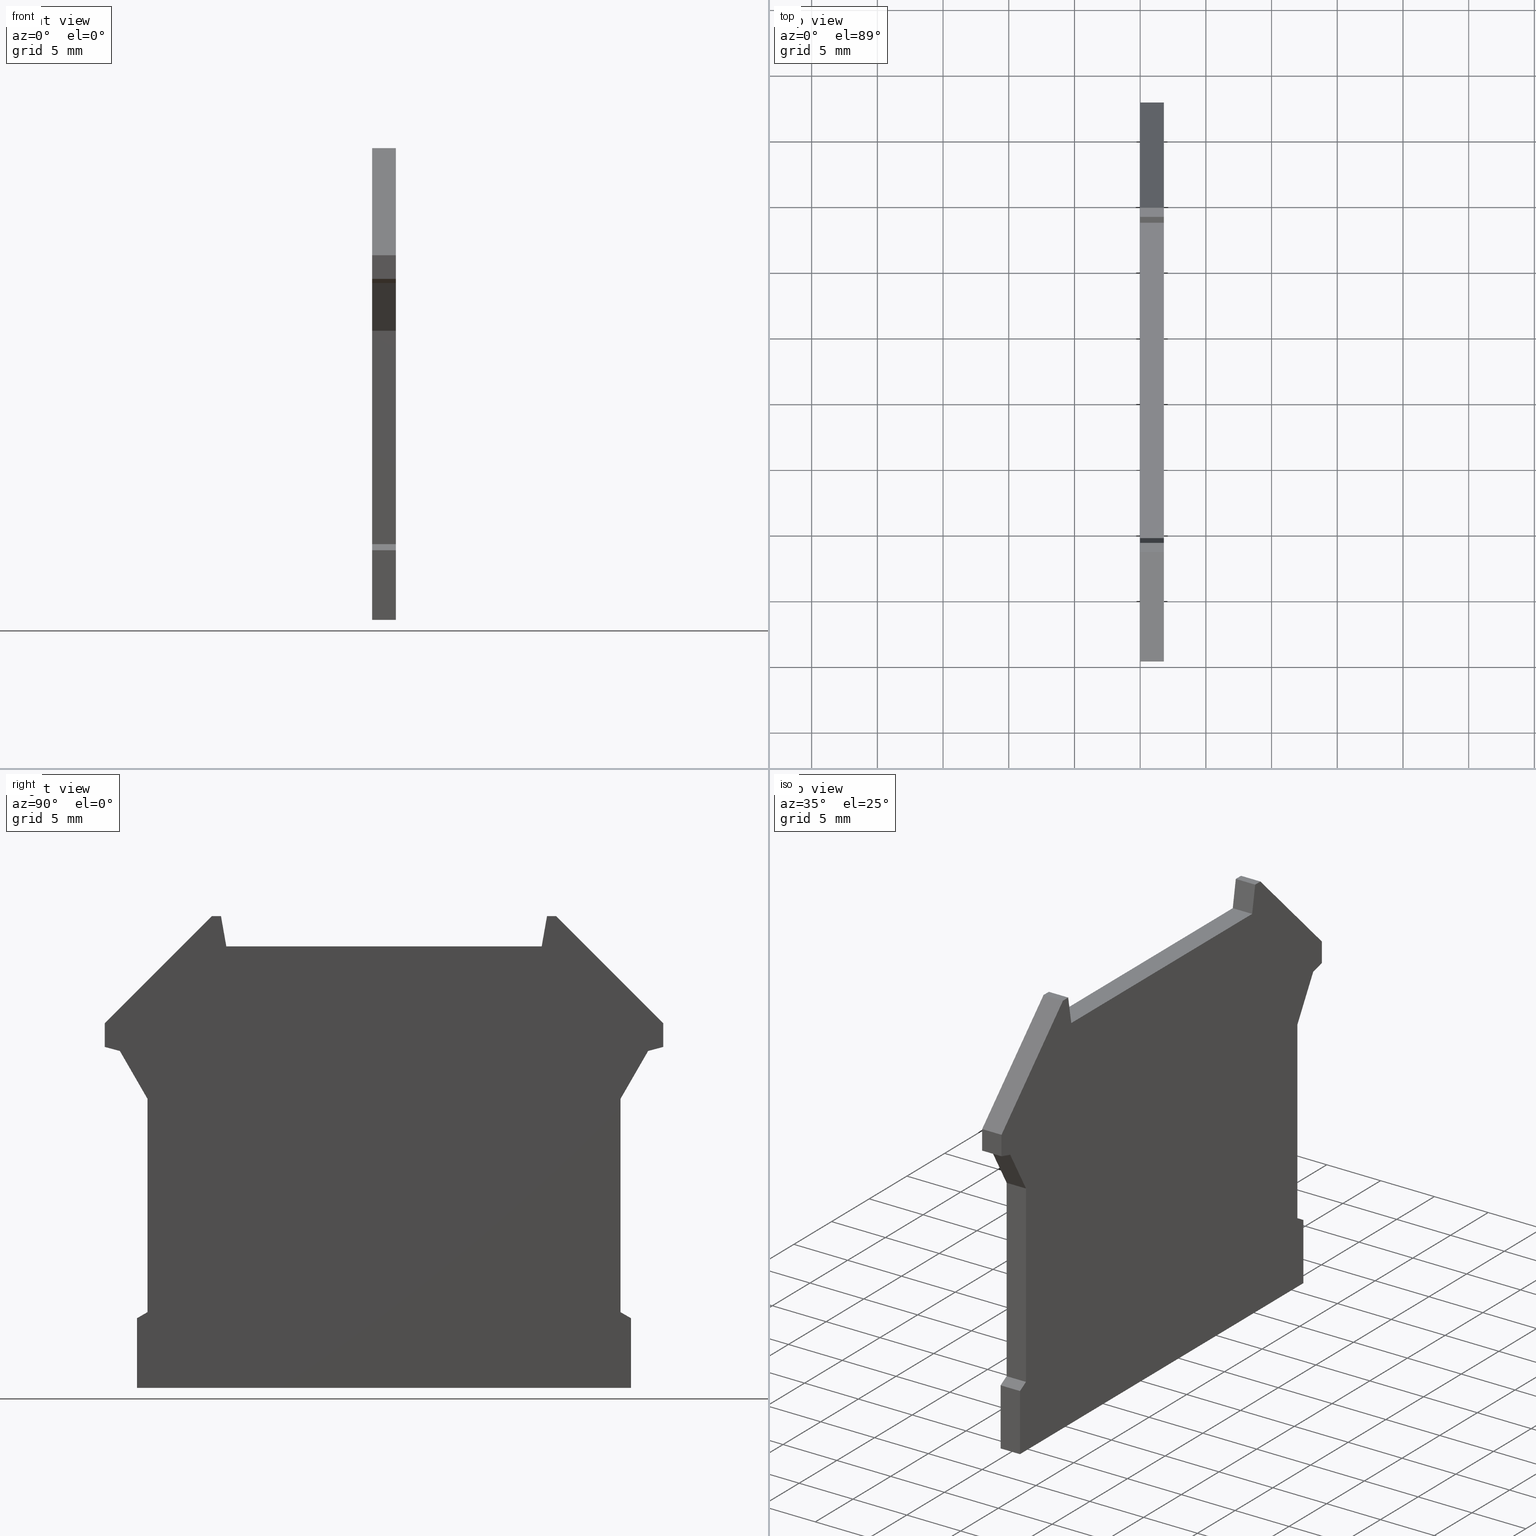
[diagram: canonical four-view strip — front | top / right | iso, engineering-drawing reading convention]
A machine part, canonical four-view strip (front | top / right | iso — engineering-drawing reading convention). The complete STEP part file that produces these views, byte-faithful:
ISO-10303-21;
HEADER;
FILE_DESCRIPTION(('Creo Elements/Direct Modeling STEP Export'),'2;1');
FILE_NAME(
'D:/temp/JobSpoolerServerData/JobServer Files/74b70a27-d33e-4ade-8ea8-19
5511be864b/work/output/model.stp','2018-02-09T13:28:40',(''),(''),
'Creo Elements/Direct Modeling STEP processor for AP214 (Solid Model)',
'Creo Elements/Direct Modeling 18.1I  14-Aug-2016 (C) Parametric Technol
ogy GmbH','');
FILE_SCHEMA(('AUTOMOTIVE_DESIGN { 1 0 10303 214 1 1 1 1 }'));
ENDSEC;
DATA;
#10=CARTESIAN_POINT('',(24.7387149722693,241.342009147616,-3.3));
#20=DIRECTION('',(0.,0.,-1.));
#30=DIRECTION('',(-1.,0.,0.));
#40=AXIS2_PLACEMENT_3D('',#10,#20,#30);
#50=PLANE('',#40);
#60=CARTESIAN_POINT('',(11.5443975377984,0.,-3.3));
#70=DIRECTION('',(0.,-1.,0.));
#80=VECTOR('',#70,1.);
#90=LINE('',#60,#80);
#100=CARTESIAN_POINT('',(11.5443975377984,250.608100844792,-3.3));
#110=VERTEX_POINT('',#100);
#120=CARTESIAN_POINT('',(11.5443975377984,234.369981060144,-3.3));
#130=VERTEX_POINT('',#120);
#140=EDGE_CURVE('',#110,#130,#90,.T.);
#150=ORIENTED_EDGE('',*,*,#140,.F.);
#160=CARTESIAN_POINT('',(0.,227.704820034065,-3.3));
#170=DIRECTION('',(0.866025403784465,0.499999999999955,0.));
#180=VECTOR('',#170,1.);
#190=LINE('',#160,#180);
#200=CARTESIAN_POINT('',(10.7443975377984,233.908100844792,-3.3));
#210=VERTEX_POINT('',#200);
#220=EDGE_CURVE('',#210,#130,#190,.T.);
#230=ORIENTED_EDGE('',*,*,#220,.T.);
#240=CARTESIAN_POINT('',(10.7443975377984,0.,-3.3));
#250=DIRECTION('',(0.,1.,0.));
#260=VECTOR('',#250,1.);
#270=LINE('',#240,#260);
#280=CARTESIAN_POINT('',(10.7443975377984,228.608100844792,-3.3));
#290=VERTEX_POINT('',#280);
#300=EDGE_CURVE('',#290,#210,#270,.T.);
#310=ORIENTED_EDGE('',*,*,#300,.T.);
#320=CARTESIAN_POINT('',(0.,228.608100844792,-3.3));
#330=DIRECTION('',(-1.,0.,0.));
#340=VECTOR('',#330,1.);
#350=LINE('',#320,#340);
#360=CARTESIAN_POINT('',(48.3443975377984,228.608100844792,-3.3));
#370=VERTEX_POINT('',#360);
#380=EDGE_CURVE('',#370,#290,#350,.T.);
#390=ORIENTED_EDGE('',*,*,#380,.T.);
#400=CARTESIAN_POINT('',(48.3443975377984,0.,-3.3));
#410=DIRECTION('',(0.,1.,0.));
#420=VECTOR('',#410,1.);
#430=LINE('',#400,#420);
#440=CARTESIAN_POINT('',(48.3443975377984,233.908100844792,-3.3));
#450=VERTEX_POINT('',#440);
#460=EDGE_CURVE('',#370,#450,#430,.T.);
#470=ORIENTED_EDGE('',*,*,#460,.F.);
#480=CARTESIAN_POINT('',(0.,261.819751777048,-3.3));
#490=DIRECTION('',(0.866025403784456,-0.499999999999971,0.));
#500=VECTOR('',#490,1.);
#510=LINE('',#480,#500);
#520=CARTESIAN_POINT('',(47.5443975377984,234.369981060144,-3.3));
#530=VERTEX_POINT('',#520);
#540=EDGE_CURVE('',#530,#450,#510,.T.);
#550=ORIENTED_EDGE('',*,*,#540,.T.);
#560=CARTESIAN_POINT('',(47.5443975377984,0.,-3.3));
#570=DIRECTION('',(0.,1.,0.));
#580=VECTOR('',#570,1.);
#590=LINE('',#560,#580);
#600=CARTESIAN_POINT('',(47.5443975377984,250.608100844792,-3.3));
#610=VERTEX_POINT('',#600);
#620=EDGE_CURVE('',#530,#610,#590,.T.);
#630=ORIENTED_EDGE('',*,*,#620,.F.);
#640=CARTESIAN_POINT('',(-97.1442569460446,0.,-3.3));
#650=DIRECTION('',(0.500000000000004,0.866025403784437,0.));
#660=VECTOR('',#650,1.);
#670=LINE('',#640,#660);
#680=CARTESIAN_POINT('',(49.6443975377984,254.245407540687,-3.3));
#690=VERTEX_POINT('',#680);
#700=EDGE_CURVE('',#610,#690,#670,.T.);
#710=ORIENTED_EDGE('',*,*,#700,.F.);
#720=CARTESIAN_POINT('',(0.,240.943231311703,-3.3));
#730=DIRECTION('',(-0.965925826289065,-0.258819045102532,0.));
#740=VECTOR('',#730,1.);
#750=LINE('',#720,#740);
#760=CARTESIAN_POINT('',(50.7943975377984,254.553549111982,-3.3));
#770=VERTEX_POINT('',#760);
#780=EDGE_CURVE('',#770,#690,#750,.T.);
#790=ORIENTED_EDGE('',*,*,#780,.T.);
#800=CARTESIAN_POINT('',(50.7943975377984,0.,-3.3));
#810=DIRECTION('',(0.,1.,0.));
#820=VECTOR('',#810,1.);
#830=LINE('',#800,#820);
#840=CARTESIAN_POINT('',(50.7943975377984,256.358100844792,-3.3));
#850=VERTEX_POINT('',#840);
#860=EDGE_CURVE('',#770,#850,#830,.T.);
#870=ORIENTED_EDGE('',*,*,#860,.F.);
#880=CARTESIAN_POINT('',(307.152498382589,0.,-3.3));
#890=DIRECTION('',(0.707106781186546,-0.707106781186549,0.));
#900=VECTOR('',#890,1.);
#910=LINE('',#880,#900);
#920=CARTESIAN_POINT('',(42.6443975377983,264.508100844792,-3.3));
#930=VERTEX_POINT('',#920);
#940=EDGE_CURVE('',#930,#850,#910,.T.);
#950=ORIENTED_EDGE('',*,*,#940,.T.);
#960=CARTESIAN_POINT('',(0.,264.508100844792,-3.3));
#970=DIRECTION('',(-1.,0.,0.));
#980=VECTOR('',#970,1.);
#990=LINE('',#960,#980);
#1000=CARTESIAN_POINT('',(41.9499495934279,264.508100844792,-3.3));
#1010=VERTEX_POINT('',#1000);
#1020=EDGE_CURVE('',#930,#1010,#990,.T.);
#1030=ORIENTED_EDGE('',*,*,#1020,.F.);
#1040=CARTESIAN_POINT('',(-4.68996520146441,0.,-3.3));
#1050=DIRECTION('',(-0.17364817766693,-0.984807753012208,0.));
#1060=VECTOR('',#1050,1.);
#1070=LINE('',#1040,#1060);
#1080=CARTESIAN_POINT('',(41.5443975377984,262.208100844792,-3.3));
#1090=VERTEX_POINT('',#1080);
#1100=EDGE_CURVE('',#1010,#1090,#1070,.T.);
#1110=ORIENTED_EDGE('',*,*,#1100,.F.);
#1120=CARTESIAN_POINT('',(0.,262.208100844792,-3.3));
#1130=DIRECTION('',(-1.,0.,0.));
#1140=VECTOR('',#1130,1.);
#1150=LINE('',#1120,#1140);
#1160=CARTESIAN_POINT('',(17.5443975377984,262.208100844792,-3.3));
#1170=VERTEX_POINT('',#1160);
#1180=EDGE_CURVE('',#1090,#1170,#1150,.T.);
#1190=ORIENTED_EDGE('',*,*,#1180,.F.);
#1200=CARTESIAN_POINT('',(63.7787602770612,0.,-3.3));
#1210=DIRECTION('',(-0.17364817766693,0.984807753012208,0.));
#1220=VECTOR('',#1210,1.);
#1230=LINE('',#1200,#1220);
#1240=CARTESIAN_POINT('',(17.1388454821689,264.508100844792,-3.3));
#1250=VERTEX_POINT('',#1240);
#1260=EDGE_CURVE('',#1170,#1250,#1230,.T.);
#1270=ORIENTED_EDGE('',*,*,#1260,.F.);
#1280=CARTESIAN_POINT('',(0.,264.508100844792,-3.3));
#1290=DIRECTION('',(-1.,0.,0.));
#1300=VECTOR('',#1290,1.);
#1310=LINE('',#1280,#1300);
#1320=CARTESIAN_POINT('',(16.4443975377984,264.508100844792,-3.3));
#1330=VERTEX_POINT('',#1320);
#1340=EDGE_CURVE('',#1250,#1330,#1310,.T.);
#1350=ORIENTED_EDGE('',*,*,#1340,.F.);
#1360=CARTESIAN_POINT('',(-248.063703306992,0.,-3.3));
#1370=DIRECTION('',(0.707106781186546,0.707106781186549,0.));
#1380=VECTOR('',#1370,1.);
#1390=LINE('',#1360,#1380);
#1400=CARTESIAN_POINT('',(8.2943975377984,256.358100844792,-3.3));
#1410=VERTEX_POINT('',#1400);
#1420=EDGE_CURVE('',#1410,#1330,#1390,.T.);
#1430=ORIENTED_EDGE('',*,*,#1420,.T.);
#1440=CARTESIAN_POINT('',(8.2943975377984,0.,-3.3));
#1450=DIRECTION('',(0.,-1.,0.));
#1460=VECTOR('',#1450,1.);
#1470=LINE('',#1440,#1460);
#1480=CARTESIAN_POINT('',(8.29439753779841,254.553549111982,-3.3));
#1490=VERTEX_POINT('',#1480);
#1500=EDGE_CURVE('',#1410,#1490,#1470,.T.);
#1510=ORIENTED_EDGE('',*,*,#1500,.F.);
#1520=CARTESIAN_POINT('',(0.,256.776026233938,-3.3));
#1530=DIRECTION('',(-0.965925826289065,0.258819045102532,0.));
#1540=VECTOR('',#1530,1.);
#1550=LINE('',#1520,#1540);
#1560=CARTESIAN_POINT('',(9.44439753779835,254.245407540687,-3.3));
#1570=VERTEX_POINT('',#1560);
#1580=EDGE_CURVE('',#1570,#1490,#1550,.T.);
#1590=ORIENTED_EDGE('',*,*,#1580,.T.);
#1600=CARTESIAN_POINT('',(156.233052021642,0.,-3.3));
#1610=DIRECTION('',(0.500000000000005,-0.866025403784436,0.));
#1620=VECTOR('',#1610,1.);
#1630=LINE('',#1600,#1620);
#1640=EDGE_CURVE('',#1570,#110,#1630,.T.);
#1650=ORIENTED_EDGE('',*,*,#1640,.F.);
#1660=EDGE_LOOP('',(#1650,#1590,#1510,#1430,#1350,#1270,#1190,#1110,
#1030,#950,#870,#790,#710,#630,#550,#470,#390,#310,#230,#150));
#1670=FACE_OUTER_BOUND('',#1660,.T.);
#1680=ADVANCED_FACE('',(#1670),#50,.T.);
#1690=COLOUR_RGB('',0.,0.443137288093567,0.709803938865662);
#1700=FILL_AREA_STYLE_COLOUR('',#1690);
#1710=FILL_AREA_STYLE('',(#1700));
#1720=SURFACE_STYLE_FILL_AREA(#1710);
#1730=SURFACE_SIDE_STYLE('',(#1720));
#1740=SURFACE_STYLE_USAGE(.BOTH.,#1730);
#1750=PRESENTATION_STYLE_ASSIGNMENT((#1740));
#1760=CARTESIAN_POINT('',(0.,0.,-1.5));
#1770=DIRECTION('',(0.,0.,1.));
#1780=DIRECTION('',(1.,0.,0.));
#1790=AXIS2_PLACEMENT_3D('',#1760,#1770,#1780);
#1800=PLANE('',#1790);
#1810=CARTESIAN_POINT('',(0.,264.508100844792,-1.5));
#1820=DIRECTION('',(-1.,0.,0.));
#1830=VECTOR('',#1820,1.);
#1840=LINE('',#1810,#1830);
#1850=CARTESIAN_POINT('',(17.1388454821689,264.508100844792,-1.5));
#1860=VERTEX_POINT('',#1850);
#1870=CARTESIAN_POINT('',(16.4443975377986,264.508100844792,-1.5));
#1880=VERTEX_POINT('',#1870);
#1890=EDGE_CURVE('',#1860,#1880,#1840,.T.);
#1900=ORIENTED_EDGE('',*,*,#1890,.T.);
#1910=CARTESIAN_POINT('',(63.7787602770612,0.,-1.5));
#1920=DIRECTION('',(-0.17364817766693,0.984807753012208,0.));
#1930=VECTOR('',#1920,1.);
#1940=LINE('',#1910,#1930);
#1950=CARTESIAN_POINT('',(17.5443975377984,262.208100844792,-1.5));
#1960=VERTEX_POINT('',#1950);
#1970=EDGE_CURVE('',#1960,#1860,#1940,.T.);
#1980=ORIENTED_EDGE('',*,*,#1970,.T.);
#1990=CARTESIAN_POINT('',(0.,262.208100844792,-1.5));
#2000=DIRECTION('',(-1.,0.,0.));
#2010=VECTOR('',#2000,1.);
#2020=LINE('',#1990,#2010);
#2030=CARTESIAN_POINT('',(41.5443975377984,262.208100844792,-1.5));
#2040=VERTEX_POINT('',#2030);
#2050=EDGE_CURVE('',#2040,#1960,#2020,.T.);
#2060=ORIENTED_EDGE('',*,*,#2050,.T.);
#2070=CARTESIAN_POINT('',(-4.68996520146441,0.,-1.5));
#2080=DIRECTION('',(-0.17364817766693,-0.984807753012208,0.));
#2090=VECTOR('',#2080,1.);
#2100=LINE('',#2070,#2090);
#2110=CARTESIAN_POINT('',(41.9499495934279,264.508100844792,-1.5));
#2120=VERTEX_POINT('',#2110);
#2130=EDGE_CURVE('',#2120,#2040,#2100,.T.);
#2140=ORIENTED_EDGE('',*,*,#2130,.T.);
#2150=CARTESIAN_POINT('',(0.,264.508100844792,-1.5));
#2160=DIRECTION('',(-1.,0.,0.));
#2170=VECTOR('',#2160,1.);
#2180=LINE('',#2150,#2170);
#2190=CARTESIAN_POINT('',(42.6443975377982,264.508100844792,-1.5));
#2200=VERTEX_POINT('',#2190);
#2210=EDGE_CURVE('',#2200,#2120,#2180,.T.);
#2220=ORIENTED_EDGE('',*,*,#2210,.T.);
#2230=CARTESIAN_POINT('',(307.152498382589,0.,-1.5));
#2240=DIRECTION('',(-0.707106781186546,0.707106781186549,0.));
#2250=VECTOR('',#2240,1.);
#2260=LINE('',#2230,#2250);
#2270=CARTESIAN_POINT('',(50.7943975377984,256.358100844792,-1.5));
#2280=VERTEX_POINT('',#2270);
#2290=EDGE_CURVE('',#2280,#2200,#2260,.T.);
#2300=ORIENTED_EDGE('',*,*,#2290,.T.);
#2310=CARTESIAN_POINT('',(50.7943975377984,0.,-1.5));
#2320=DIRECTION('',(0.,1.,0.));
#2330=VECTOR('',#2320,1.);
#2340=LINE('',#2310,#2330);
#2350=CARTESIAN_POINT('',(50.7943975377984,254.553549111982,-1.5));
#2360=VERTEX_POINT('',#2350);
#2370=EDGE_CURVE('',#2360,#2280,#2340,.T.);
#2380=ORIENTED_EDGE('',*,*,#2370,.T.);
#2390=CARTESIAN_POINT('',(0.,240.943231311703,-1.5));
#2400=DIRECTION('',(0.965925826289065,0.258819045102532,0.));
#2410=VECTOR('',#2400,1.);
#2420=LINE('',#2390,#2410);
#2430=CARTESIAN_POINT('',(49.6443975377986,254.245407540687,-1.5));
#2440=VERTEX_POINT('',#2430);
#2450=EDGE_CURVE('',#2440,#2360,#2420,.T.);
#2460=ORIENTED_EDGE('',*,*,#2450,.T.);
#2470=CARTESIAN_POINT('',(-97.1442569460446,0.,-1.5));
#2480=DIRECTION('',(0.500000000000004,0.866025403784437,0.));
#2490=VECTOR('',#2480,1.);
#2500=LINE('',#2470,#2490);
#2510=CARTESIAN_POINT('',(47.5443975377984,250.608100844792,-1.5));
#2520=VERTEX_POINT('',#2510);
#2530=EDGE_CURVE('',#2520,#2440,#2500,.T.);
#2540=ORIENTED_EDGE('',*,*,#2530,.T.);
#2550=CARTESIAN_POINT('',(47.5443975377984,0.,-1.5));
#2560=DIRECTION('',(0.,1.,0.));
#2570=VECTOR('',#2560,1.);
#2580=LINE('',#2550,#2570);
#2590=CARTESIAN_POINT('',(47.5443975377984,234.369981060144,-1.5));
#2600=VERTEX_POINT('',#2590);
#2610=EDGE_CURVE('',#2600,#2520,#2580,.T.);
#2620=ORIENTED_EDGE('',*,*,#2610,.T.);
#2630=CARTESIAN_POINT('',(0.,261.819751777048,-1.5));
#2640=DIRECTION('',(-0.866025403784456,0.499999999999971,0.));
#2650=VECTOR('',#2640,1.);
#2660=LINE('',#2630,#2650);
#2670=CARTESIAN_POINT('',(48.3443975377984,233.908100844792,-1.5));
#2680=VERTEX_POINT('',#2670);
#2690=EDGE_CURVE('',#2680,#2600,#2660,.T.);
#2700=ORIENTED_EDGE('',*,*,#2690,.T.);
#2710=CARTESIAN_POINT('',(48.3443975377984,0.,-1.5));
#2720=DIRECTION('',(0.,1.,0.));
#2730=VECTOR('',#2720,1.);
#2740=LINE('',#2710,#2730);
#2750=CARTESIAN_POINT('',(48.3443975377984,228.608100844792,-1.5));
#2760=VERTEX_POINT('',#2750);
#2770=EDGE_CURVE('',#2760,#2680,#2740,.T.);
#2780=ORIENTED_EDGE('',*,*,#2770,.T.);
#2790=CARTESIAN_POINT('',(0.,228.608100844792,-1.5));
#2800=DIRECTION('',(1.,0.,0.));
#2810=VECTOR('',#2800,1.);
#2820=LINE('',#2790,#2810);
#2830=CARTESIAN_POINT('',(10.7443975377984,228.608100844792,-1.5));
#2840=VERTEX_POINT('',#2830);
#2850=EDGE_CURVE('',#2840,#2760,#2820,.T.);
#2860=ORIENTED_EDGE('',*,*,#2850,.T.);
#2870=CARTESIAN_POINT('',(10.7443975377984,0.,-1.5));
#2880=DIRECTION('',(0.,-1.,0.));
#2890=VECTOR('',#2880,1.);
#2900=LINE('',#2870,#2890);
#2910=CARTESIAN_POINT('',(10.7443975377984,233.908100844792,-1.5));
#2920=VERTEX_POINT('',#2910);
#2930=EDGE_CURVE('',#2920,#2840,#2900,.T.);
#2940=ORIENTED_EDGE('',*,*,#2930,.T.);
#2950=CARTESIAN_POINT('',(0.,227.704820034065,-1.5));
#2960=DIRECTION('',(-0.866025403784465,-0.499999999999955,0.));
#2970=VECTOR('',#2960,1.);
#2980=LINE('',#2950,#2970);
#2990=CARTESIAN_POINT('',(11.5443975377984,234.369981060144,-1.5));
#3000=VERTEX_POINT('',#2990);
#3010=EDGE_CURVE('',#3000,#2920,#2980,.T.);
#3020=ORIENTED_EDGE('',*,*,#3010,.T.);
#3030=CARTESIAN_POINT('',(11.5443975377984,0.,-1.5));
#3040=DIRECTION('',(0.,-1.,0.));
#3050=VECTOR('',#3040,1.);
#3060=LINE('',#3030,#3050);
#3070=CARTESIAN_POINT('',(11.5443975377984,250.608100844792,-1.5));
#3080=VERTEX_POINT('',#3070);
#3090=EDGE_CURVE('',#3080,#3000,#3060,.T.);
#3100=ORIENTED_EDGE('',*,*,#3090,.T.);
#3110=CARTESIAN_POINT('',(156.233052021642,0.,-1.5));
#3120=DIRECTION('',(0.500000000000005,-0.866025403784436,0.));
#3130=VECTOR('',#3120,1.);
#3140=LINE('',#3110,#3130);
#3150=CARTESIAN_POINT('',(9.44439753779835,254.245407540687,-1.5));
#3160=VERTEX_POINT('',#3150);
#3170=EDGE_CURVE('',#3160,#3080,#3140,.T.);
#3180=ORIENTED_EDGE('',*,*,#3170,.T.);
#3190=CARTESIAN_POINT('',(0.,256.776026233938,-1.5));
#3200=DIRECTION('',(0.965925826289065,-0.258819045102532,0.));
#3210=VECTOR('',#3200,1.);
#3220=LINE('',#3190,#3210);
#3230=CARTESIAN_POINT('',(8.2943975377984,254.553549111982,-1.5));
#3240=VERTEX_POINT('',#3230);
#3250=EDGE_CURVE('',#3240,#3160,#3220,.T.);
#3260=ORIENTED_EDGE('',*,*,#3250,.T.);
#3270=CARTESIAN_POINT('',(8.2943975377984,0.,-1.5));
#3280=DIRECTION('',(0.,-1.,0.));
#3290=VECTOR('',#3280,1.);
#3300=LINE('',#3270,#3290);
#3310=CARTESIAN_POINT('',(8.2943975377984,256.358100844792,-1.5));
#3320=VERTEX_POINT('',#3310);
#3330=EDGE_CURVE('',#3320,#3240,#3300,.T.);
#3340=ORIENTED_EDGE('',*,*,#3330,.T.);
#3350=CARTESIAN_POINT('',(-248.063703306992,0.,-1.5));
#3360=DIRECTION('',(-0.707106781186546,-0.707106781186549,0.));
#3370=VECTOR('',#3360,1.);
#3380=LINE('',#3350,#3370);
#3390=EDGE_CURVE('',#1880,#3320,#3380,.T.);
#3400=ORIENTED_EDGE('',*,*,#3390,.T.);
#3410=EDGE_LOOP('',(#3400,#3340,#3260,#3180,#3100,#3020,#2940,#2860,
#2780,#2700,#2620,#2540,#2460,#2380,#2300,#2220,#2140,#2060,#1980,#1900)
);
#3420=FACE_OUTER_BOUND('',#3410,.T.);
#3430=ADVANCED_FACE('',(#3420),#1800,.T.);
#3440=COLOUR_RGB('',0.,0.443137288093567,0.709803938865662);
#3450=FILL_AREA_STYLE_COLOUR('',#3440);
#3460=FILL_AREA_STYLE('',(#3450));
#3470=SURFACE_STYLE_FILL_AREA(#3460);
#3480=SURFACE_SIDE_STYLE('',(#3470));
#3490=SURFACE_STYLE_USAGE(.BOTH.,#3480);
#3500=PRESENTATION_STYLE_ASSIGNMENT((#3490));
#3510=CARTESIAN_POINT('',(9.03557849269588,254.354950273672,0.));
#3520=DIRECTION('',(-0.258819045102532,-0.965925826289065,-0.));
#3530=DIRECTION('',(-0.965925826289065,0.258819045102532,0.));
#3540=AXIS2_PLACEMENT_3D('',#3510,#3520,#3530);
#3550=PLANE('',#3540);
#3560=ORIENTED_EDGE('',*,*,#3250,.F.);
#3570=CARTESIAN_POINT('',(9.44439753779839,254.245407540687,0.));
#3580=DIRECTION('',(0.,0.,1.));
#3590=VECTOR('',#3580,1.);
#3600=LINE('',#3570,#3590);
#3610=EDGE_CURVE('',#1570,#3160,#3600,.T.);
#3620=ORIENTED_EDGE('',*,*,#3610,.T.);
#3630=ORIENTED_EDGE('',*,*,#1580,.F.);
#3640=CARTESIAN_POINT('',(8.2943975377984,254.553549111982,0.));
#3650=DIRECTION('',(0.,0.,1.));
#3660=VECTOR('',#3650,1.);
#3670=LINE('',#3640,#3660);
#3680=EDGE_CURVE('',#1490,#3240,#3670,.T.);
#3690=ORIENTED_EDGE('',*,*,#3680,.F.);
#3700=EDGE_LOOP('',(#3690,#3630,#3620,#3560));
#3710=FACE_OUTER_BOUND('',#3700,.T.);
#3720=ADVANCED_FACE('',(#3710),#3550,.T.);
#3730=COLOUR_RGB('',0.,0.443137288093567,0.709803938865662);
#3740=FILL_AREA_STYLE_COLOUR('',#3730);
#3750=FILL_AREA_STYLE('',(#3740));
#3760=SURFACE_STYLE_FILL_AREA(#3750);
#3770=SURFACE_SIDE_STYLE('',(#3760));
#3780=SURFACE_STYLE_USAGE(.BOTH.,#3770);
#3790=PRESENTATION_STYLE_ASSIGNMENT((#3780));
#3800=CARTESIAN_POINT('',(16.4443975377984,264.508100844792,0.));
#3810=DIRECTION('',(-0.707106781186549,0.707106781186546,0.));
#3820=DIRECTION('',(0.707106781186546,0.707106781186549,0.));
#3830=AXIS2_PLACEMENT_3D('',#3800,#3810,#3820);
#3840=PLANE('',#3830);
#3850=CARTESIAN_POINT('',(16.4443975377984,264.508100844792,0.));
#3860=DIRECTION('',(0.,0.,1.));
#3870=VECTOR('',#3860,1.);
#3880=LINE('',#3850,#3870);
#3890=EDGE_CURVE('',#1330,#1880,#3880,.T.);
#3900=ORIENTED_EDGE('',*,*,#3890,.F.);
#3910=ORIENTED_EDGE('',*,*,#3390,.F.);
#3920=CARTESIAN_POINT('',(8.2943975377984,256.358100844792,0.));
#3930=DIRECTION('',(0.,0.,-1.));
#3940=VECTOR('',#3930,1.);
#3950=LINE('',#3920,#3940);
#3960=EDGE_CURVE('',#3320,#1410,#3950,.T.);
#3970=ORIENTED_EDGE('',*,*,#3960,.F.);
#3980=ORIENTED_EDGE('',*,*,#1420,.F.);
#3990=EDGE_LOOP('',(#3980,#3970,#3910,#3900));
#4000=FACE_OUTER_BOUND('',#3990,.T.);
#4010=ADVANCED_FACE('',(#4000),#3840,.T.);
#4020=COLOUR_RGB('',0.,0.443137288093567,0.709803938865662);
#4030=FILL_AREA_STYLE_COLOUR('',#4020);
#4040=FILL_AREA_STYLE('',(#4030));
#4050=SURFACE_STYLE_FILL_AREA(#4040);
#4060=SURFACE_SIDE_STYLE('',(#4050));
#4070=SURFACE_STYLE_USAGE(.BOTH.,#4060);
#4080=PRESENTATION_STYLE_ASSIGNMENT((#4070));
#4090=CARTESIAN_POINT('',(48.3443975377984,229.608100844792,0.));
#4100=DIRECTION('',(1.,0.,0.));
#4110=DIRECTION('',(0.,-1.,0.));
#4120=AXIS2_PLACEMENT_3D('',#4090,#4100,#4110);
#4130=PLANE('',#4120);
#4140=ORIENTED_EDGE('',*,*,#2770,.F.);
#4150=CARTESIAN_POINT('',(48.3443975377984,233.908100844792,0.));
#4160=DIRECTION('',(0.,0.,1.));
#4170=VECTOR('',#4160,1.);
#4180=LINE('',#4150,#4170);
#4190=EDGE_CURVE('',#450,#2680,#4180,.T.);
#4200=ORIENTED_EDGE('',*,*,#4190,.T.);
#4210=ORIENTED_EDGE('',*,*,#460,.T.);
#4220=CARTESIAN_POINT('',(48.3443975377984,228.608100844792,0.));
#4230=DIRECTION('',(0.,0.,-1.));
#4240=VECTOR('',#4230,1.);
#4250=LINE('',#4220,#4240);
#4260=EDGE_CURVE('',#2760,#370,#4250,.T.);
#4270=ORIENTED_EDGE('',*,*,#4260,.T.);
#4280=EDGE_LOOP('',(#4270,#4210,#4200,#4140));
#4290=FACE_OUTER_BOUND('',#4280,.T.);
#4300=ADVANCED_FACE('',(#4290),#4130,.T.);
#4310=COLOUR_RGB('',0.,0.443137288093567,0.709803938865662);
#4320=FILL_AREA_STYLE_COLOUR('',#4310);
#4330=FILL_AREA_STYLE('',(#4320));
#4340=SURFACE_STYLE_FILL_AREA(#4330);
#4350=SURFACE_SIDE_STYLE('',(#4340));
#4360=SURFACE_STYLE_USAGE(.BOTH.,#4350);
#4370=PRESENTATION_STYLE_ASSIGNMENT((#4360));
#4380=CARTESIAN_POINT('',(47.5443975377984,234.369981060144,0.));
#4390=DIRECTION('',(1.,0.,0.));
#4400=DIRECTION('',(0.,-1.,0.));
#4410=AXIS2_PLACEMENT_3D('',#4380,#4390,#4400);
#4420=PLANE('',#4410);
#4430=CARTESIAN_POINT('',(47.5443975377984,250.608100844792,0.));
#4440=DIRECTION('',(0.,0.,-1.));
#4450=VECTOR('',#4440,1.);
#4460=LINE('',#4430,#4450);
#4470=EDGE_CURVE('',#2520,#610,#4460,.T.);
#4480=ORIENTED_EDGE('',*,*,#4470,.F.);
#4490=ORIENTED_EDGE('',*,*,#620,.T.);
#4500=CARTESIAN_POINT('',(47.5443975377984,234.369981060144,0.));
#4510=DIRECTION('',(0.,0.,1.));
#4520=VECTOR('',#4510,1.);
#4530=LINE('',#4500,#4520);
#4540=EDGE_CURVE('',#530,#2600,#4530,.T.);
#4550=ORIENTED_EDGE('',*,*,#4540,.F.);
#4560=ORIENTED_EDGE('',*,*,#2610,.F.);
#4570=EDGE_LOOP('',(#4560,#4550,#4490,#4480));
#4580=FACE_OUTER_BOUND('',#4570,.T.);
#4590=ADVANCED_FACE('',(#4580),#4420,.T.);
#4600=COLOUR_RGB('',0.,0.443137288093567,0.709803938865662);
#4610=FILL_AREA_STYLE_COLOUR('',#4600);
#4620=FILL_AREA_STYLE('',(#4610));
#4630=SURFACE_STYLE_FILL_AREA(#4620);
#4640=SURFACE_SIDE_STYLE('',(#4630));
#4650=SURFACE_STYLE_USAGE(.BOTH.,#4640);
#4660=PRESENTATION_STYLE_ASSIGNMENT((#4650));
#4670=CARTESIAN_POINT('',(49.6443975377984,254.245407540687,0.));
#4680=DIRECTION('',(0.258819045102532,-0.965925826289065,0.));
#4690=DIRECTION('',(-0.965925826289065,-0.258819045102532,0.));
#4700=AXIS2_PLACEMENT_3D('',#4670,#4680,#4690);
#4710=PLANE('',#4700);
#4720=ORIENTED_EDGE('',*,*,#780,.F.);
#4730=CARTESIAN_POINT('',(49.6443975377984,254.245407540687,0.));
#4740=DIRECTION('',(0.,0.,-1.));
#4750=VECTOR('',#4740,1.);
#4760=LINE('',#4730,#4750);
#4770=EDGE_CURVE('',#2440,#690,#4760,.T.);
#4780=ORIENTED_EDGE('',*,*,#4770,.T.);
#4790=ORIENTED_EDGE('',*,*,#2450,.F.);
#4800=CARTESIAN_POINT('',(50.7943975377984,254.553549111982,0.));
#4810=DIRECTION('',(0.,0.,-1.));
#4820=VECTOR('',#4810,1.);
#4830=LINE('',#4800,#4820);
#4840=EDGE_CURVE('',#2360,#770,#4830,.T.);
#4850=ORIENTED_EDGE('',*,*,#4840,.F.);
#4860=EDGE_LOOP('',(#4850,#4790,#4780,#4720));
#4870=FACE_OUTER_BOUND('',#4860,.T.);
#4880=ADVANCED_FACE('',(#4870),#4710,.T.);
#4890=COLOUR_RGB('',0.,0.443137288093567,0.709803938865662);
#4900=FILL_AREA_STYLE_COLOUR('',#4890);
#4910=FILL_AREA_STYLE('',(#4900));
#4920=SURFACE_STYLE_FILL_AREA(#4910);
#4930=SURFACE_SIDE_STYLE('',(#4920));
#4940=SURFACE_STYLE_USAGE(.BOTH.,#4930);
#4950=PRESENTATION_STYLE_ASSIGNMENT((#4940));
#4960=CARTESIAN_POINT('',(10.7443975377984,233.330750575602,0.));
#4970=DIRECTION('',(-1.,0.,0.));
#4980=DIRECTION('',(0.,1.,0.));
#4990=AXIS2_PLACEMENT_3D('',#4960,#4970,#4980);
#5000=PLANE('',#4990);
#5010=ORIENTED_EDGE('',*,*,#2930,.F.);
#5020=CARTESIAN_POINT('',(10.7443975377984,228.608100844792,0.));
#5030=DIRECTION('',(0.,0.,-1.));
#5040=VECTOR('',#5030,1.);
#5050=LINE('',#5020,#5040);
#5060=EDGE_CURVE('',#2840,#290,#5050,.T.);
#5070=ORIENTED_EDGE('',*,*,#5060,.F.);
#5080=ORIENTED_EDGE('',*,*,#300,.F.);
#5090=CARTESIAN_POINT('',(10.7443975377984,233.908100844792,0.));
#5100=DIRECTION('',(0.,0.,1.));
#5110=VECTOR('',#5100,1.);
#5120=LINE('',#5090,#5110);
#5130=EDGE_CURVE('',#210,#2920,#5120,.T.);
#5140=ORIENTED_EDGE('',*,*,#5130,.F.);
#5150=EDGE_LOOP('',(#5140,#5080,#5070,#5010));
#5160=FACE_OUTER_BOUND('',#5150,.T.);
#5170=ADVANCED_FACE('',(#5160),#5000,.T.);
#5180=COLOUR_RGB('',0.,0.443137288093567,0.709803938865662);
#5190=FILL_AREA_STYLE_COLOUR('',#5180);
#5200=FILL_AREA_STYLE('',(#5190));
#5210=SURFACE_STYLE_FILL_AREA(#5200);
#5220=SURFACE_SIDE_STYLE('',(#5210));
#5230=SURFACE_STYLE_USAGE(.BOTH.,#5220);
#5240=PRESENTATION_STYLE_ASSIGNMENT((#5230));
#5250=CARTESIAN_POINT('',(50.7943975377984,255.320876099961,0.));
#5260=DIRECTION('',(1.,0.,0.));
#5270=DIRECTION('',(0.,-1.,0.));
#5280=AXIS2_PLACEMENT_3D('',#5250,#5260,#5270);
#5290=PLANE('',#5280);
#5300=ORIENTED_EDGE('',*,*,#860,.T.);
#5310=ORIENTED_EDGE('',*,*,#4840,.T.);
#5320=ORIENTED_EDGE('',*,*,#2370,.F.);
#5330=CARTESIAN_POINT('',(50.7943975377984,256.358100844792,0.));
#5340=DIRECTION('',(0.,0.,1.));
#5350=VECTOR('',#5340,1.);
#5360=LINE('',#5330,#5350);
#5370=EDGE_CURVE('',#850,#2280,#5360,.T.);
#5380=ORIENTED_EDGE('',*,*,#5370,.T.);
#5390=EDGE_LOOP('',(#5380,#5320,#5310,#5300));
#5400=FACE_OUTER_BOUND('',#5390,.T.);
#5410=ADVANCED_FACE('',(#5400),#5290,.T.);
#5420=COLOUR_RGB('',0.,0.443137288093567,0.709803938865662);
#5430=FILL_AREA_STYLE_COLOUR('',#5420);
#5440=FILL_AREA_STYLE('',(#5430));
#5450=SURFACE_STYLE_FILL_AREA(#5440);
#5460=SURFACE_SIDE_STYLE('',(#5450));
#5470=SURFACE_STYLE_USAGE(.BOTH.,#5460);
#5480=PRESENTATION_STYLE_ASSIGNMENT((#5470));
#5490=CARTESIAN_POINT('',(9.4443975377984,254.245407540687,0.));
#5500=DIRECTION('',(-0.866025403784436,-0.500000000000005,-0.));
#5510=DIRECTION('',(-0.500000000000005,0.866025403784436,0.));
#5520=AXIS2_PLACEMENT_3D('',#5490,#5500,#5510);
#5530=PLANE('',#5520);
#5540=CARTESIAN_POINT('',(11.5443975377984,250.608100844792,0.));
#5550=DIRECTION('',(0.,0.,1.));
#5560=VECTOR('',#5550,1.);
#5570=LINE('',#5540,#5560);
#5580=EDGE_CURVE('',#110,#3080,#5570,.T.);
#5590=ORIENTED_EDGE('',*,*,#5580,.T.);
#5600=ORIENTED_EDGE('',*,*,#1640,.T.);
#5610=ORIENTED_EDGE('',*,*,#3610,.F.);
#5620=ORIENTED_EDGE('',*,*,#3170,.F.);
#5630=EDGE_LOOP('',(#5620,#5610,#5600,#5590));
#5640=FACE_OUTER_BOUND('',#5630,.T.);
#5650=ADVANCED_FACE('',(#5640),#5530,.T.);
#5660=COLOUR_RGB('',0.,0.443137288093567,0.709803938865662);
#5670=FILL_AREA_STYLE_COLOUR('',#5660);
#5680=FILL_AREA_STYLE('',(#5670));
#5690=SURFACE_STYLE_FILL_AREA(#5680);
#5700=SURFACE_SIDE_STYLE('',(#5690));
#5710=SURFACE_STYLE_USAGE(.BOTH.,#5700);
#5720=PRESENTATION_STYLE_ASSIGNMENT((#5710));
#5730=CARTESIAN_POINT('',(41.9499495934279,264.508100844792,0.));
#5740=DIRECTION('',(-0.984807753012208,0.17364817766693,0.));
#5750=DIRECTION('',(0.17364817766693,0.984807753012208,0.));
#5760=AXIS2_PLACEMENT_3D('',#5730,#5740,#5750);
#5770=PLANE('',#5760);
#5780=CARTESIAN_POINT('',(41.5443975377984,262.208100844792,0.));
#5790=DIRECTION('',(0.,0.,1.));
#5800=VECTOR('',#5790,1.);
#5810=LINE('',#5780,#5800);
#5820=EDGE_CURVE('',#1090,#2040,#5810,.T.);
#5830=ORIENTED_EDGE('',*,*,#5820,.T.);
#5840=ORIENTED_EDGE('',*,*,#1100,.T.);
#5850=CARTESIAN_POINT('',(41.9499495934279,264.508100844792,0.));
#5860=DIRECTION('',(0.,0.,-1.));
#5870=VECTOR('',#5860,1.);
#5880=LINE('',#5850,#5870);
#5890=EDGE_CURVE('',#2120,#1010,#5880,.T.);
#5900=ORIENTED_EDGE('',*,*,#5890,.T.);
#5910=ORIENTED_EDGE('',*,*,#2130,.F.);
#5920=EDGE_LOOP('',(#5910,#5900,#5840,#5830));
#5930=FACE_OUTER_BOUND('',#5920,.T.);
#5940=ADVANCED_FACE('',(#5930),#5770,.T.);
#5950=COLOUR_RGB('',0.,0.443137288093567,0.709803938865662);
#5960=FILL_AREA_STYLE_COLOUR('',#5950);
#5970=FILL_AREA_STYLE('',(#5960));
#5980=SURFACE_STYLE_FILL_AREA(#5970);
#5990=SURFACE_SIDE_STYLE('',(#5980));
#6000=SURFACE_STYLE_USAGE(.BOTH.,#5990);
#6010=PRESENTATION_STYLE_ASSIGNMENT((#6000));
#6020=CARTESIAN_POINT('',(17.1388454821689,264.508100844792,0.));
#6030=DIRECTION('',(-0.,1.,0.));
#6040=DIRECTION('',(1.,0.,0.));
#6050=AXIS2_PLACEMENT_3D('',#6020,#6030,#6040);
#6060=PLANE('',#6050);
#6070=ORIENTED_EDGE('',*,*,#3890,.T.);
#6080=ORIENTED_EDGE('',*,*,#1340,.T.);
#6090=CARTESIAN_POINT('',(17.1388454821689,264.508100844792,0.));
#6100=DIRECTION('',(0.,0.,-1.));
#6110=VECTOR('',#6100,1.);
#6120=LINE('',#6090,#6110);
#6130=EDGE_CURVE('',#1860,#1250,#6120,.T.);
#6140=ORIENTED_EDGE('',*,*,#6130,.T.);
#6150=ORIENTED_EDGE('',*,*,#1890,.F.);
#6160=EDGE_LOOP('',(#6150,#6140,#6080,#6070));
#6170=FACE_OUTER_BOUND('',#6160,.T.);
#6180=ADVANCED_FACE('',(#6170),#6060,.T.);
#6190=COLOUR_RGB('',0.,0.443137288093567,0.709803938865662);
#6200=FILL_AREA_STYLE_COLOUR('',#6190);
#6210=FILL_AREA_STYLE('',(#6200));
#6220=SURFACE_STYLE_FILL_AREA(#6210);
#6230=SURFACE_SIDE_STYLE('',(#6220));
#6240=SURFACE_STYLE_USAGE(.BOTH.,#6230);
#6250=PRESENTATION_STYLE_ASSIGNMENT((#6240));
#6260=CARTESIAN_POINT('',(47.5443975377984,250.608100844792,0.));
#6270=DIRECTION('',(0.866025403784437,-0.500000000000004,0.));
#6280=DIRECTION('',(-0.500000000000004,-0.866025403784437,0.));
#6290=AXIS2_PLACEMENT_3D('',#6260,#6270,#6280);
#6300=PLANE('',#6290);
#6310=ORIENTED_EDGE('',*,*,#4770,.F.);
#6320=ORIENTED_EDGE('',*,*,#700,.T.);
#6330=ORIENTED_EDGE('',*,*,#4470,.T.);
#6340=ORIENTED_EDGE('',*,*,#2530,.F.);
#6350=EDGE_LOOP('',(#6340,#6330,#6320,#6310));
#6360=FACE_OUTER_BOUND('',#6350,.T.);
#6370=ADVANCED_FACE('',(#6360),#6300,.T.);
#6380=COLOUR_RGB('',0.,0.443137288093567,0.709803938865662);
#6390=FILL_AREA_STYLE_COLOUR('',#6380);
#6400=FILL_AREA_STYLE('',(#6390));
#6410=SURFACE_STYLE_FILL_AREA(#6400);
#6420=SURFACE_SIDE_STYLE('',(#6410));
#6430=SURFACE_STYLE_USAGE(.BOTH.,#6420);
#6440=PRESENTATION_STYLE_ASSIGNMENT((#6430));
#6450=CARTESIAN_POINT('',(11.7443975377984,228.608100844792,0.));
#6460=DIRECTION('',(-0.,-1.,-0.));
#6470=DIRECTION('',(-1.,0.,0.));
#6480=AXIS2_PLACEMENT_3D('',#6450,#6460,#6470);
#6490=PLANE('',#6480);
#6500=ORIENTED_EDGE('',*,*,#380,.F.);
#6510=ORIENTED_EDGE('',*,*,#5060,.T.);
#6520=ORIENTED_EDGE('',*,*,#2850,.F.);
#6530=ORIENTED_EDGE('',*,*,#4260,.F.);
#6540=EDGE_LOOP('',(#6530,#6520,#6510,#6500));
#6550=FACE_OUTER_BOUND('',#6540,.T.);
#6560=ADVANCED_FACE('',(#6550),#6490,.T.);
#6570=COLOUR_RGB('',0.,0.443137288093567,0.709803938865662);
#6580=FILL_AREA_STYLE_COLOUR('',#6570);
#6590=FILL_AREA_STYLE('',(#6580));
#6600=SURFACE_STYLE_FILL_AREA(#6590);
#6610=SURFACE_SIDE_STYLE('',(#6600));
#6620=SURFACE_STYLE_USAGE(.BOTH.,#6610);
#6630=PRESENTATION_STYLE_ASSIGNMENT((#6620));
#6640=CARTESIAN_POINT('',(41.5443975377984,262.208100844792,0.));
#6650=DIRECTION('',(-0.,1.,0.));
#6660=DIRECTION('',(1.,0.,0.));
#6670=AXIS2_PLACEMENT_3D('',#6640,#6650,#6660);
#6680=PLANE('',#6670);
#6690=CARTESIAN_POINT('',(17.5443975377984,262.208100844792,0.));
#6700=DIRECTION('',(0.,0.,-1.));
#6710=VECTOR('',#6700,1.);
#6720=LINE('',#6690,#6710);
#6730=EDGE_CURVE('',#1960,#1170,#6720,.T.);
#6740=ORIENTED_EDGE('',*,*,#6730,.F.);
#6750=ORIENTED_EDGE('',*,*,#1180,.T.);
#6760=ORIENTED_EDGE('',*,*,#5820,.F.);
#6770=ORIENTED_EDGE('',*,*,#2050,.F.);
#6780=EDGE_LOOP('',(#6770,#6760,#6750,#6740));
#6790=FACE_OUTER_BOUND('',#6780,.T.);
#6800=ADVANCED_FACE('',(#6790),#6680,.T.);
#6810=COLOUR_RGB('',0.,0.443137288093567,0.709803938865662);
#6820=FILL_AREA_STYLE_COLOUR('',#6810);
#6830=FILL_AREA_STYLE('',(#6820));
#6840=SURFACE_STYLE_FILL_AREA(#6830);
#6850=SURFACE_SIDE_STYLE('',(#6840));
#6860=SURFACE_STYLE_USAGE(.BOTH.,#6850);
#6870=PRESENTATION_STYLE_ASSIGNMENT((#6860));
#6880=CARTESIAN_POINT('',(8.2943975377984,256.150994063605,0.));
#6890=DIRECTION('',(-1.,0.,0.));
#6900=DIRECTION('',(0.,1.,0.));
#6910=AXIS2_PLACEMENT_3D('',#6880,#6890,#6900);
#6920=PLANE('',#6910);
#6930=ORIENTED_EDGE('',*,*,#3330,.F.);
#6940=ORIENTED_EDGE('',*,*,#3680,.T.);
#6950=ORIENTED_EDGE('',*,*,#1500,.T.);
#6960=ORIENTED_EDGE('',*,*,#3960,.T.);
#6970=EDGE_LOOP('',(#6960,#6950,#6940,#6930));
#6980=FACE_OUTER_BOUND('',#6970,.T.);
#6990=ADVANCED_FACE('',(#6980),#6920,.T.);
#7000=COLOUR_RGB('',0.,0.443137288093567,0.709803938865662);
#7010=FILL_AREA_STYLE_COLOUR('',#7000);
#7020=FILL_AREA_STYLE('',(#7010));
#7030=SURFACE_STYLE_FILL_AREA(#7020);
#7040=SURFACE_SIDE_STYLE('',(#7030));
#7050=SURFACE_STYLE_USAGE(.BOTH.,#7040);
#7060=PRESENTATION_STYLE_ASSIGNMENT((#7050));
#7070=CARTESIAN_POINT('',(47.8443975377984,234.196775979387,0.));
#7080=DIRECTION('',(0.499999999999971,0.866025403784456,0.));
#7090=DIRECTION('',(0.866025403784456,-0.499999999999971,0.));
#7100=AXIS2_PLACEMENT_3D('',#7070,#7080,#7090);
#7110=PLANE('',#7100);
#7120=ORIENTED_EDGE('',*,*,#2690,.F.);
#7130=ORIENTED_EDGE('',*,*,#4540,.T.);
#7140=ORIENTED_EDGE('',*,*,#540,.F.);
#7150=ORIENTED_EDGE('',*,*,#4190,.F.);
#7160=EDGE_LOOP('',(#7150,#7140,#7130,#7120));
#7170=FACE_OUTER_BOUND('',#7160,.T.);
#7180=ADVANCED_FACE('',(#7170),#7110,.T.);
#7190=COLOUR_RGB('',0.,0.443137288093567,0.709803938865662);
#7200=FILL_AREA_STYLE_COLOUR('',#7190);
#7210=FILL_AREA_STYLE('',(#7200));
#7220=SURFACE_STYLE_FILL_AREA(#7210);
#7230=SURFACE_SIDE_STYLE('',(#7220));
#7240=SURFACE_STYLE_USAGE(.BOTH.,#7230);
#7250=PRESENTATION_STYLE_ASSIGNMENT((#7240));
#7260=CARTESIAN_POINT('',(42.6443975377984,264.508100844792,0.));
#7270=DIRECTION('',(-0.,1.,0.));
#7280=DIRECTION('',(1.,0.,0.));
#7290=AXIS2_PLACEMENT_3D('',#7260,#7270,#7280);
#7300=PLANE('',#7290);
#7310=ORIENTED_EDGE('',*,*,#5890,.F.);
#7320=ORIENTED_EDGE('',*,*,#1020,.T.);
#7330=CARTESIAN_POINT('',(42.6443975377984,264.508100844792,0.));
#7340=DIRECTION('',(0.,0.,-1.));
#7350=VECTOR('',#7340,1.);
#7360=LINE('',#7330,#7350);
#7370=EDGE_CURVE('',#2200,#930,#7360,.T.);
#7380=ORIENTED_EDGE('',*,*,#7370,.T.);
#7390=ORIENTED_EDGE('',*,*,#2210,.F.);
#7400=EDGE_LOOP('',(#7390,#7380,#7320,#7310));
#7410=FACE_OUTER_BOUND('',#7400,.T.);
#7420=ADVANCED_FACE('',(#7410),#7300,.T.);
#7430=COLOUR_RGB('',0.,0.443137288093567,0.709803938865662);
#7440=FILL_AREA_STYLE_COLOUR('',#7430);
#7450=FILL_AREA_STYLE('',(#7440));
#7460=SURFACE_STYLE_FILL_AREA(#7450);
#7470=SURFACE_SIDE_STYLE('',(#7460));
#7480=SURFACE_STYLE_USAGE(.BOTH.,#7470);
#7490=PRESENTATION_STYLE_ASSIGNMENT((#7480));
#7500=CARTESIAN_POINT('',(17.5443975377984,262.208100844792,0.));
#7510=DIRECTION('',(0.984807753012208,0.17364817766693,0.));
#7520=DIRECTION('',(0.17364817766693,-0.984807753012208,0.));
#7530=AXIS2_PLACEMENT_3D('',#7500,#7510,#7520);
#7540=PLANE('',#7530);
#7550=ORIENTED_EDGE('',*,*,#6130,.F.);
#7560=ORIENTED_EDGE('',*,*,#1260,.T.);
#7570=ORIENTED_EDGE('',*,*,#6730,.T.);
#7580=ORIENTED_EDGE('',*,*,#1970,.F.);
#7590=EDGE_LOOP('',(#7580,#7570,#7560,#7550));
#7600=FACE_OUTER_BOUND('',#7590,.T.);
#7610=ADVANCED_FACE('',(#7600),#7540,.T.);
#7620=COLOUR_RGB('',0.,0.443137288093567,0.709803938865662);
#7630=FILL_AREA_STYLE_COLOUR('',#7620);
#7640=FILL_AREA_STYLE('',(#7630));
#7650=SURFACE_STYLE_FILL_AREA(#7640);
#7660=SURFACE_SIDE_STYLE('',(#7650));
#7670=SURFACE_STYLE_USAGE(.BOTH.,#7660);
#7680=PRESENTATION_STYLE_ASSIGNMENT((#7670));
#7690=CARTESIAN_POINT('',(11.5443975377984,250.608100844792,0.));
#7700=DIRECTION('',(-1.,0.,0.));
#7710=DIRECTION('',(0.,1.,0.));
#7720=AXIS2_PLACEMENT_3D('',#7690,#7700,#7710);
#7730=PLANE('',#7720);
#7740=CARTESIAN_POINT('',(11.5443975377984,234.369981060144,0.));
#7750=DIRECTION('',(0.,0.,-1.));
#7760=VECTOR('',#7750,1.);
#7770=LINE('',#7740,#7760);
#7780=EDGE_CURVE('',#3000,#130,#7770,.T.);
#7790=ORIENTED_EDGE('',*,*,#7780,.F.);
#7800=ORIENTED_EDGE('',*,*,#140,.T.);
#7810=ORIENTED_EDGE('',*,*,#5580,.F.);
#7820=ORIENTED_EDGE('',*,*,#3090,.F.);
#7830=EDGE_LOOP('',(#7820,#7810,#7800,#7790));
#7840=FACE_OUTER_BOUND('',#7830,.T.);
#7850=ADVANCED_FACE('',(#7840),#7730,.T.);
#7860=COLOUR_RGB('',0.,0.443137288093567,0.709803938865662);
#7870=FILL_AREA_STYLE_COLOUR('',#7860);
#7880=FILL_AREA_STYLE('',(#7870));
#7890=SURFACE_STYLE_FILL_AREA(#7880);
#7900=SURFACE_SIDE_STYLE('',(#7890));
#7910=SURFACE_STYLE_USAGE(.BOTH.,#7900);
#7920=PRESENTATION_STYLE_ASSIGNMENT((#7910));
#7930=CARTESIAN_POINT('',(50.6479509283917,256.504547454199,0.));
#7940=DIRECTION('',(0.707106781186549,0.707106781186546,0.));
#7950=DIRECTION('',(0.707106781186546,-0.707106781186549,0.));
#7960=AXIS2_PLACEMENT_3D('',#7930,#7940,#7950);
#7970=PLANE('',#7960);
#7980=ORIENTED_EDGE('',*,*,#7370,.F.);
#7990=ORIENTED_EDGE('',*,*,#940,.F.);
#8000=ORIENTED_EDGE('',*,*,#5370,.F.);
#8010=ORIENTED_EDGE('',*,*,#2290,.F.);
#8020=EDGE_LOOP('',(#8010,#8000,#7990,#7980));
#8030=FACE_OUTER_BOUND('',#8020,.T.);
#8040=ADVANCED_FACE('',(#8030),#7970,.T.);
#8050=COLOUR_RGB('',0.,0.443137288093567,0.709803938865662);
#8060=FILL_AREA_STYLE_COLOUR('',#8050);
#8070=FILL_AREA_STYLE('',(#8060));
#8080=SURFACE_STYLE_FILL_AREA(#8070);
#8090=SURFACE_SIDE_STYLE('',(#8080));
#8100=SURFACE_STYLE_USAGE(.BOTH.,#8090);
#8110=PRESENTATION_STYLE_ASSIGNMENT((#8100));
#8120=CARTESIAN_POINT('',(11.5443975377984,234.369981060144,0.));
#8130=DIRECTION('',(-0.499999999999955,0.866025403784465,0.));
#8140=DIRECTION('',(0.866025403784465,0.499999999999955,0.));
#8150=AXIS2_PLACEMENT_3D('',#8120,#8130,#8140);
#8160=PLANE('',#8150);
#8170=ORIENTED_EDGE('',*,*,#220,.F.);
#8180=ORIENTED_EDGE('',*,*,#7780,.T.);
#8190=ORIENTED_EDGE('',*,*,#3010,.F.);
#8200=ORIENTED_EDGE('',*,*,#5130,.T.);
#8210=EDGE_LOOP('',(#8200,#8190,#8180,#8170));
#8220=FACE_OUTER_BOUND('',#8210,.T.);
#8230=ADVANCED_FACE('',(#8220),#8160,.T.);
#8240=COLOUR_RGB('',0.,0.443137288093567,0.709803938865662);
#8250=FILL_AREA_STYLE_COLOUR('',#8240);
#8260=FILL_AREA_STYLE('',(#8250));
#8270=SURFACE_STYLE_FILL_AREA(#8260);
#8280=SURFACE_SIDE_STYLE('',(#8270));
#8290=SURFACE_STYLE_USAGE(.BOTH.,#8280);
#8300=PRESENTATION_STYLE_ASSIGNMENT((#8290));
#8310=CLOSED_SHELL('',(#3720,#4010,#4300,#4590,#4880,#5170,#5410,#5650,
#5940,#6180,#6370,#6560,#6800,#6990,#7180,#7420,#7610,#7850,#8040,#8230,
#1680,#3430));
#8320=MANIFOLD_SOLID_BREP('',#8310);
#8330=CARTESIAN_POINT('',(0.,0.,0.));
#8340=DIRECTION('',(0.,0.,1.));
#8350=DIRECTION('',(1.,0.,0.));
#8360=AXIS2_PLACEMENT_3D('',#8330,#8340,#8350);
#8370=APPLICATION_CONTEXT(' ');
#8380=APPLICATION_PROTOCOL_DEFINITION(' ','automotive_design',1998,#8370
);
#8390=PRODUCT_CONTEXT('',#8370,'mechanical');
#8400=PRODUCT_DEFINITION_CONTEXT('part definition',#8370,'design');
#8410=PRODUCT('D-UK_4_10_BU-select','D-UK_4_10_BU-select','',(#8390));
#8420=PRODUCT_RELATED_PRODUCT_CATEGORY('part',' ',(#8410));
#8430=PRODUCT_DEFINITION_FORMATION_WITH_SPECIFIED_SOURCE('','',#8410,
.BOUGHT.);
#8440=PRODUCT_DEFINITION('',' ',#8430,#8400);
#8450=PRODUCT_DEFINITION_SHAPE('','',#8440);
#8460=DIMENSIONAL_EXPONENTS(1.,0.,0.,0.,0.,0.,0.);
#8470=DIMENSIONAL_EXPONENTS(0.,0.,0.,0.,0.,0.,0.);
#8480=DIMENSIONAL_EXPONENTS(0.,0.,0.,0.,0.,0.,0.);
#8490=(LENGTH_UNIT() NAMED_UNIT(*) SI_UNIT(.MILLI.,.METRE.));
#8500=(NAMED_UNIT(*) PLANE_ANGLE_UNIT() SI_UNIT($,.RADIAN.));
#8510=(NAMED_UNIT(*) SI_UNIT($,.STERADIAN.) SOLID_ANGLE_UNIT());
#8520=(GEOMETRIC_REPRESENTATION_CONTEXT(3) 
GLOBAL_UNCERTAINTY_ASSIGNED_CONTEXT((#8530)) 
GLOBAL_UNIT_ASSIGNED_CONTEXT((#8490,#8500,#8510)) REPRESENTATION_CONTEXT
('',''));
#8530=UNCERTAINTY_MEASURE_WITH_UNIT(LENGTH_MEASURE(1.E-6),#8490,
'distance_accuracy_value','maximum gap value');
#8540=ADVANCED_BREP_SHAPE_REPRESENTATION('',(#8360,#8320),#8520);
#8550=SHAPE_DEFINITION_REPRESENTATION(#8450,#8540);
#8560=COLOUR_RGB('',0.,0.443137288093567,0.709803938865662);
#8570=FILL_AREA_STYLE_COLOUR('',#8560);
#8580=FILL_AREA_STYLE('',(#8570));
#8590=SURFACE_STYLE_FILL_AREA(#8580);
#8600=SURFACE_SIDE_STYLE('',(#8590));
#8610=SURFACE_STYLE_USAGE(.BOTH.,#8600);
#8620=PRESENTATION_STYLE_ASSIGNMENT((#8610));
#8630=STYLED_ITEM('',(#8620),#8320);
#8640=OVER_RIDING_STYLED_ITEM('',(#1750),#1680,#8630);
#8650=OVER_RIDING_STYLED_ITEM('',(#3500),#3430,#8630);
#8660=OVER_RIDING_STYLED_ITEM('',(#3790),#3720,#8630);
#8670=OVER_RIDING_STYLED_ITEM('',(#4080),#4010,#8630);
#8680=OVER_RIDING_STYLED_ITEM('',(#4370),#4300,#8630);
#8690=OVER_RIDING_STYLED_ITEM('',(#4660),#4590,#8630);
#8700=OVER_RIDING_STYLED_ITEM('',(#4950),#4880,#8630);
#8710=OVER_RIDING_STYLED_ITEM('',(#5240),#5170,#8630);
#8720=OVER_RIDING_STYLED_ITEM('',(#5480),#5410,#8630);
#8730=OVER_RIDING_STYLED_ITEM('',(#5720),#5650,#8630);
#8740=OVER_RIDING_STYLED_ITEM('',(#6010),#5940,#8630);
#8750=OVER_RIDING_STYLED_ITEM('',(#6250),#6180,#8630);
#8760=OVER_RIDING_STYLED_ITEM('',(#6440),#6370,#8630);
#8770=OVER_RIDING_STYLED_ITEM('',(#6630),#6560,#8630);
#8780=OVER_RIDING_STYLED_ITEM('',(#6870),#6800,#8630);
#8790=OVER_RIDING_STYLED_ITEM('',(#7060),#6990,#8630);
#8800=OVER_RIDING_STYLED_ITEM('',(#7250),#7180,#8630);
#8810=OVER_RIDING_STYLED_ITEM('',(#7490),#7420,#8630);
#8820=OVER_RIDING_STYLED_ITEM('',(#7680),#7610,#8630);
#8830=OVER_RIDING_STYLED_ITEM('',(#7920),#7850,#8630);
#8840=OVER_RIDING_STYLED_ITEM('',(#8110),#8040,#8630);
#8850=OVER_RIDING_STYLED_ITEM('',(#8300),#8230,#8630);
#8860=DRAUGHTING_MODEL('',(#8630,#8640,#8650,#8660,#8670,#8680,#8690,
#8700,#8710,#8720,#8730,#8740,#8750,#8760,#8770,#8780,#8790,#8800,#8810,
#8820,#8830,#8840,#8850),#8520);
#8870=CARTESIAN_POINT('',(3.3,-8.29439753779835,-228.608100844792));
#8880=DIRECTION('',(1.,-2.22044604925031E-16,0.));
#8890=DIRECTION('',(2.22044604925031E-16,1.,2.22044604925031E-16));
#8900=AXIS2_PLACEMENT_3D('',#8870,#8880,#8890);
#8910=ITEM_DEFINED_TRANSFORMATION('D-UK_4_10_BU-select','',#8360,#8900);
#8920=APPLICATION_CONTEXT(' ');
#8930=APPLICATION_PROTOCOL_DEFINITION(' ','automotive_design',1998,#8920
);
#8940=PRODUCT_CONTEXT('',#8920,'mechanical');
#8950=PRODUCT_DEFINITION_CONTEXT('part definition',#8920,'design');
#8960=PRODUCT('D-UK_4_10_BU-select','D-UK_4_10_BU-select','',(#8940));
#8970=PRODUCT_RELATED_PRODUCT_CATEGORY('part',' ',(#8960));
#8980=PRODUCT_DEFINITION_FORMATION_WITH_SPECIFIED_SOURCE('','',#8960,
.BOUGHT.);
#8990=PRODUCT_DEFINITION('',' ',#8980,#8950);
#9000=PRODUCT_DEFINITION_SHAPE('','',#8990);
#9010=DIMENSIONAL_EXPONENTS(1.,0.,0.,0.,0.,0.,0.);
#9020=DIMENSIONAL_EXPONENTS(0.,0.,0.,0.,0.,0.,0.);
#9030=DIMENSIONAL_EXPONENTS(0.,0.,0.,0.,0.,0.,0.);
#9040=(LENGTH_UNIT() NAMED_UNIT(*) SI_UNIT(.MILLI.,.METRE.));
#9050=(NAMED_UNIT(*) PLANE_ANGLE_UNIT() SI_UNIT($,.RADIAN.));
#9060=(NAMED_UNIT(*) SI_UNIT($,.STERADIAN.) SOLID_ANGLE_UNIT());
#9070=(GEOMETRIC_REPRESENTATION_CONTEXT(3) 
GLOBAL_UNCERTAINTY_ASSIGNED_CONTEXT((#9080)) 
GLOBAL_UNIT_ASSIGNED_CONTEXT((#9040,#9050,#9060)) REPRESENTATION_CONTEXT
('',''));
#9080=UNCERTAINTY_MEASURE_WITH_UNIT(LENGTH_MEASURE(1.E-6),#9040,
'distance_accuracy_value','maximum gap value');
#9090=SHAPE_REPRESENTATION('',(#8360,#8900),#9070);
#9100=SHAPE_DEFINITION_REPRESENTATION(#9000,#9090);
#9110=(REPRESENTATION_RELATIONSHIP('','',#8540,#9090) 
REPRESENTATION_RELATIONSHIP_WITH_TRANSFORMATION(#8910) 
SHAPE_REPRESENTATION_RELATIONSHIP());
#9120=NEXT_ASSEMBLY_USAGE_OCCURRENCE('1','','D-UK_4_10_BU-select',#8990,
#8440,'');
#9130=PRODUCT_DEFINITION_SHAPE('','',#9120);
#9140=CONTEXT_DEPENDENT_SHAPE_REPRESENTATION(#9110,#9130);
ENDSEC;
END-ISO-10303-21;
